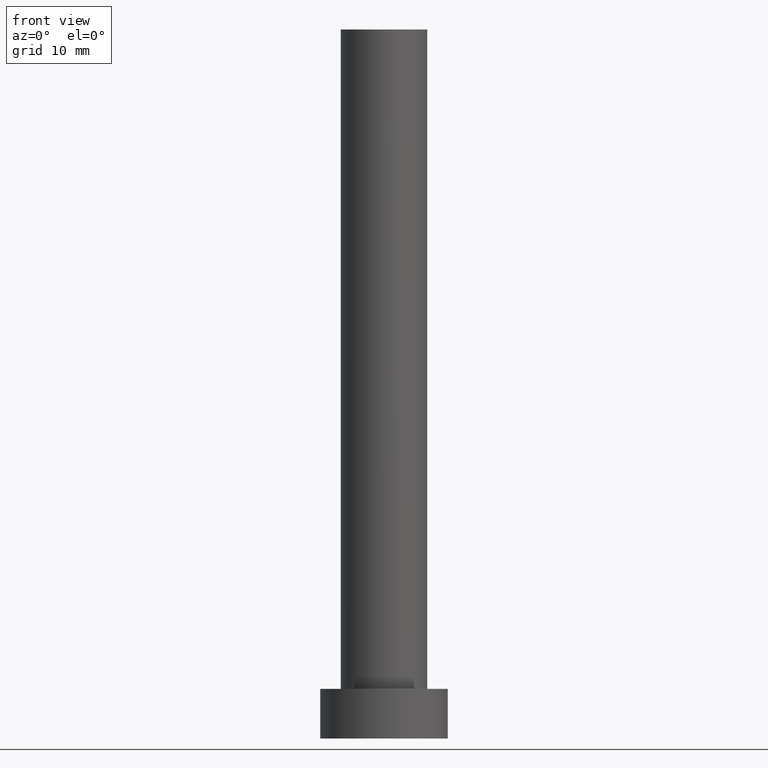
[diagram: clean part render]
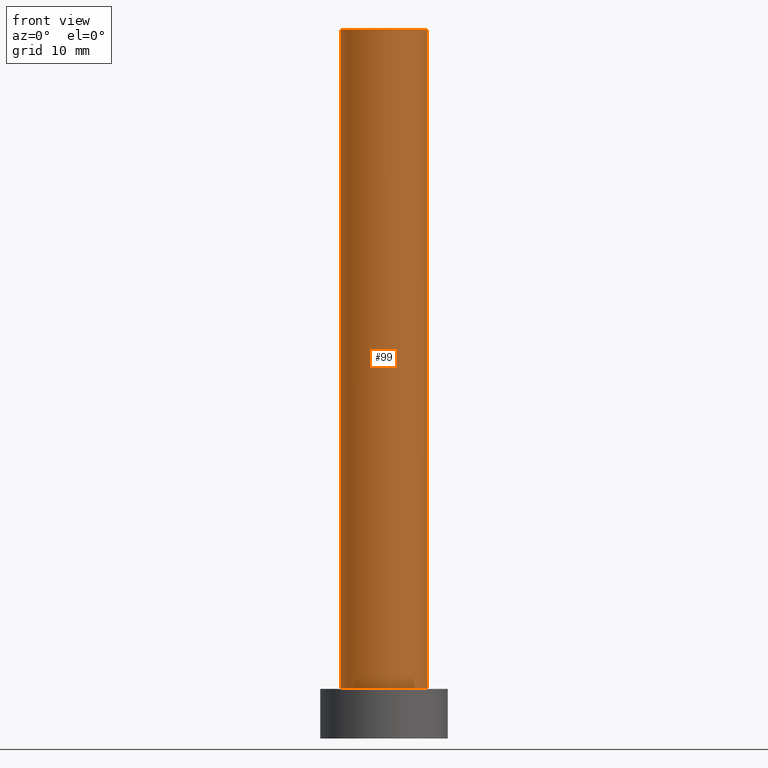
[diagram: same view with one face highlighted and labeled with its STEP entity id]
A machine part, front view. The second image highlights one B-rep face of the part: STEP entity #99.
In plain terms, the highlighted cylindrical surface (partial cylindrical patch) has radius 6.1 mm, axis along (-0, -0, -1).
Its self-contained STEP definition (entity closure, byte-faithful):
#1 = CARTESIAN_POINT ( 'NONE',  ( 6.099999999999999645, 7.470345474798852320E-16, 100.0000000000000000 ) ) ;
#9 = VECTOR ( 'NONE', #107, 1000.000000000000000 ) ;
#16 = VERTEX_POINT ( 'NONE', #1 ) ;
#20 = CYLINDRICAL_SURFACE ( 'NONE', #71, 6.099999999999999645 ) ;
#23 = LINE ( 'NONE', #44, #9 ) ;
#30 = DIRECTION ( 'NONE',  ( 1.000000000000000000, 0.000000000000000000, 0.000000000000000000 ) ) ;
#33 = EDGE_CURVE ( 'NONE', #16, #160, #177, .T. ) ;
#34 = CIRCLE ( 'NONE', #171, 6.099999999999999645 ) ;
#37 = ORIENTED_EDGE ( 'NONE', *, *, #112, .T. ) ;
#44 = CARTESIAN_POINT ( 'NONE',  ( -6.099999999999999645, 0.000000000000000000, 100.0000000000000000 ) ) ;
#46 = CARTESIAN_POINT ( 'NONE',  ( -6.099999999999999645, 0.000000000000000000, 7.000000000000000000 ) ) ;
#60 = DIRECTION ( 'NONE',  ( 0.000000000000000000, 0.000000000000000000, 1.000000000000000000 ) ) ;
#62 = CARTESIAN_POINT ( 'NONE',  ( 0.000000000000000000, 0.000000000000000000, 100.0000000000000000 ) ) ;
#71 = AXIS2_PLACEMENT_3D ( 'NONE', #178, #81, #219 ) ;
#81 = DIRECTION ( 'NONE',  ( -0.000000000000000000, -0.000000000000000000, -1.000000000000000000 ) ) ;
#99 = ADVANCED_FACE ( 'NONE', ( #197 ), #20, .T. ) ;
#103 = EDGE_CURVE ( 'NONE', #140, #16, #183, .T. ) ;
#104 = EDGE_LOOP ( 'NONE', ( #136, #255, #37, #211 ) ) ;
#107 = DIRECTION ( 'NONE',  ( -0.000000000000000000, -0.000000000000000000, -1.000000000000000000 ) ) ;
#112 = EDGE_CURVE ( 'NONE', #140, #248, #23, .T. ) ;
#136 = ORIENTED_EDGE ( 'NONE', *, *, #33, .F. ) ;
#140 = VERTEX_POINT ( 'NONE', #221 ) ;
#141 = CARTESIAN_POINT ( 'NONE',  ( 6.099999999999999645, 7.470345474798852320E-16, 100.0000000000000000 ) ) ;
#150 = DIRECTION ( 'NONE',  ( 0.000000000000000000, 0.000000000000000000, 1.000000000000000000 ) ) ;
#157 = VECTOR ( 'NONE', #159, 1000.000000000000000 ) ;
#159 = DIRECTION ( 'NONE',  ( -0.000000000000000000, -0.000000000000000000, -1.000000000000000000 ) ) ;
#160 = VERTEX_POINT ( 'NONE', #167 ) ;
#162 = DIRECTION ( 'NONE',  ( 1.000000000000000000, 0.000000000000000000, 0.000000000000000000 ) ) ;
#167 = CARTESIAN_POINT ( 'NONE',  ( 6.099999999999999645, 7.470345474798852320E-16, 7.000000000000000000 ) ) ;
#168 = EDGE_CURVE ( 'NONE', #248, #160, #34, .T. ) ;
#171 = AXIS2_PLACEMENT_3D ( 'NONE', #205, #150, #30 ) ;
#177 = LINE ( 'NONE', #141, #157 ) ;
#178 = CARTESIAN_POINT ( 'NONE',  ( 0.000000000000000000, 0.000000000000000000, 100.0000000000000000 ) ) ;
#183 = CIRCLE ( 'NONE', #235, 6.099999999999999645 ) ;
#197 = FACE_OUTER_BOUND ( 'NONE', #104, .T. ) ;
#205 = CARTESIAN_POINT ( 'NONE',  ( 0.000000000000000000, 0.000000000000000000, 7.000000000000000000 ) ) ;
#211 = ORIENTED_EDGE ( 'NONE', *, *, #168, .T. ) ;
#219 = DIRECTION ( 'NONE',  ( -1.000000000000000000, 0.000000000000000000, 0.000000000000000000 ) ) ;
#221 = CARTESIAN_POINT ( 'NONE',  ( -6.099999999999999645, 0.000000000000000000, 100.0000000000000000 ) ) ;
#235 = AXIS2_PLACEMENT_3D ( 'NONE', #62, #60, #162 ) ;
#248 = VERTEX_POINT ( 'NONE', #46 ) ;
#255 = ORIENTED_EDGE ( 'NONE', *, *, #103, .F. ) ;